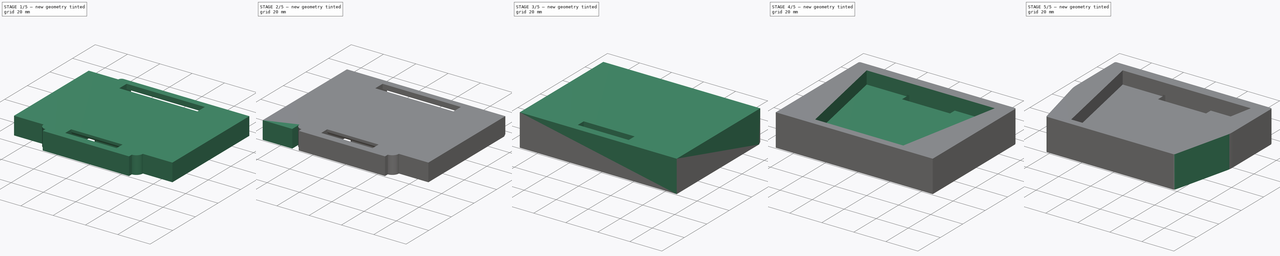
[diagram: build sequence overview — one tinted view per stage of 5, left to right]
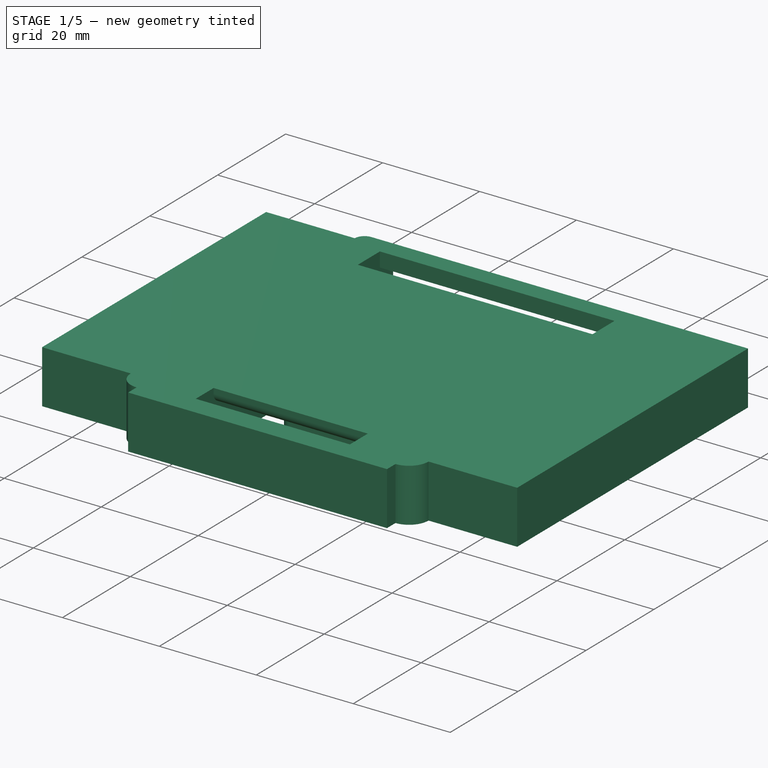
[diagram: stage 1 of 5 — iso view after this stage's code; geometry added in this stage tinted green]
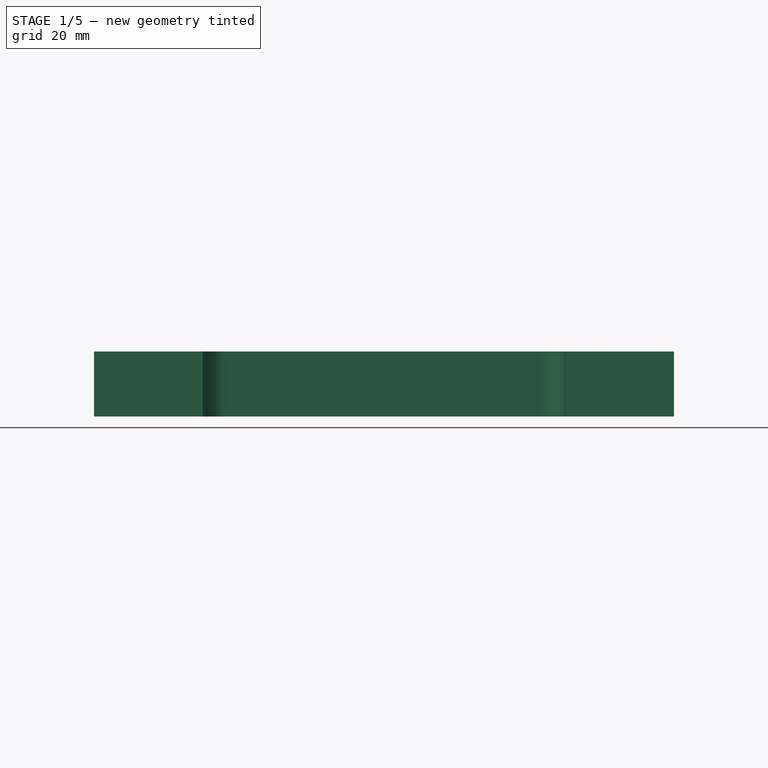
[diagram: stage 1 of 5 — front view after this stage's code; geometry added in this stage tinted green]
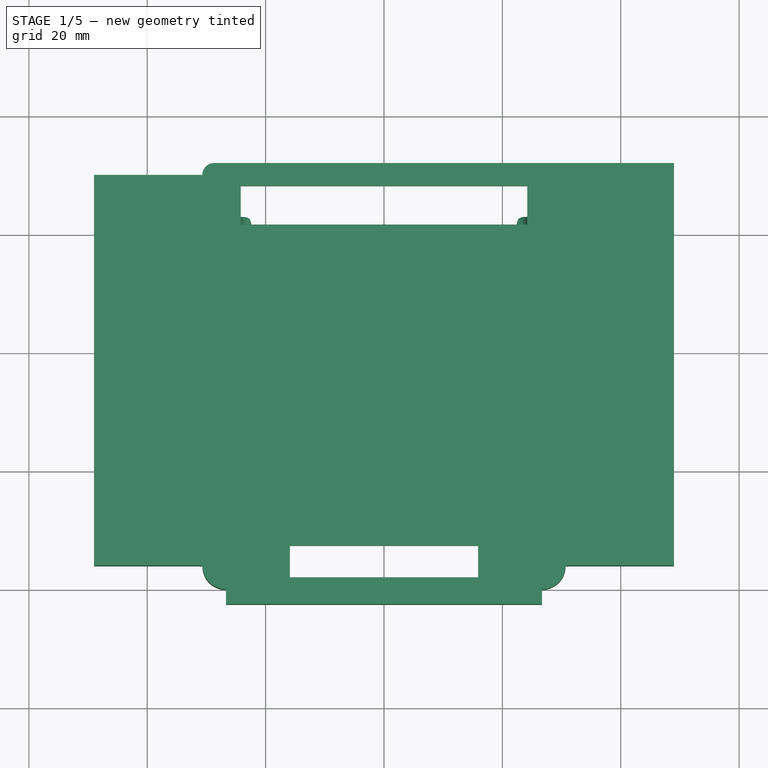
[diagram: stage 1 of 5 — top view after this stage's code; geometry added in this stage tinted green]
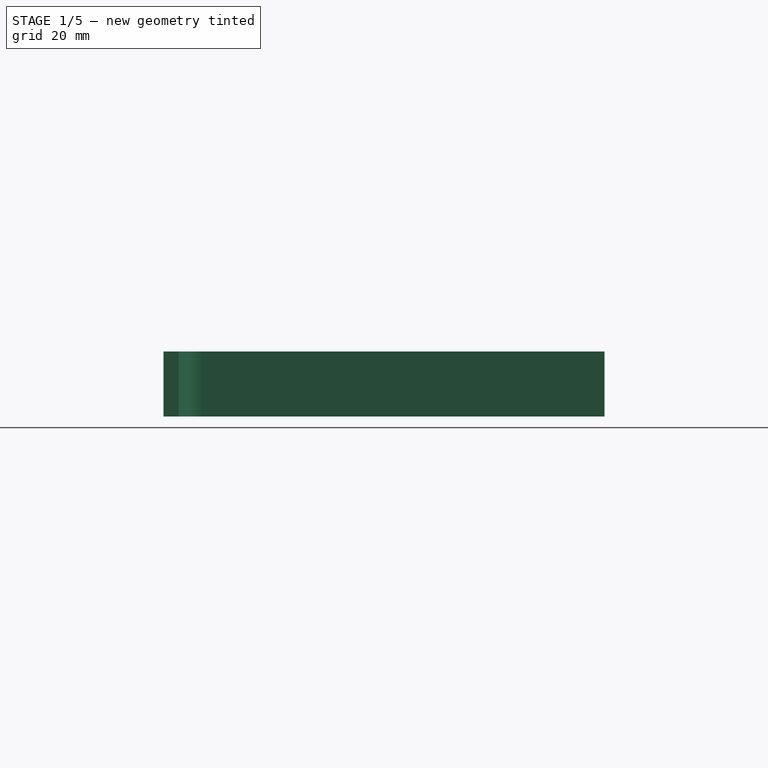
[diagram: stage 1 of 5 — right view after this stage's code; geometry added in this stage tinted green]
FCSTD DOCUMENT  (FreeCAD 0.19R)
Label: Einhell-12V-USBv.0.9
License: All rights reserved
LicenseURL: http://en.wikipedia.org/wiki/All_rights_reserved
objects: PartDesign::Pad×14, PartDesign::Fillet×7, PartDesign::Chamfer×4, PartDesign::Plane×2, Sketcher::SketchObject×2, PartDesign::Pocket×2, Part::Feature×1, App::Part×1, Part::Refine×1, PartDesign::FeatureBase×1, PartDesign::Body×1
note: 62 computed .brp shape members not serialized (recipe doc carries the construction recipe); baked Part::Feature solids carry a one-line shape summary decoded from their .brp

FEATURE [Part::Feature] Part__Feature  label="EinhellAdapterV2"
  shape: bbox 61.4 x 72 x 11 mm, 75 faces (baked)
FEATURE [App::Part] EinhellAdapterV2_v14  label="EinhellAdapterV2 v14"
  Group = -> [Part__Feature]
  Origin = -> Origin
FEATURE [Part::Refine] Part__Feature001  label="EinhellAdapterV003"
  Source = -> Part__Feature
FEATURE [PartDesign::FeatureBase] BaseFeature
  BaseFeature = -> Part__Feature001
FEATURE [PartDesign::Pad] Pad
  BaseFeature = -> BaseFeature
  Direction = (1,1,1)
  Length = 18.3
  Length2 = 100
  Profile = -> BaseFeature [Face31]
  Refine = true
  Type = 0
FEATURE [PartDesign::Pad] Pad001
  BaseFeature = -> Pad
  Direction = (1,1,1)
  Length = 18.3
  Length2 = 100
  Profile = -> Pad [Face2]
  Refine = true
  Type = 0
FEATURE [PartDesign::Pad] Pad002
  BaseFeature = -> Pad001
  Direction = (1,1,1)
  Length = 2.5
  Length2 = 100
  Profile = -> Pad001 [Face12]
  Refine = true
  Type = 0
FEATURE [PartDesign::Pad] Pad003
  BaseFeature = -> Pad002
  Direction = (1,1,1)
  Length = 2
  Length2 = 100
  Profile = -> Pad002 [Face9]
  Refine = true
  Type = 0
FEATURE [PartDesign::Pad] Pad004
  BaseFeature = -> Pad003
  Direction = (1,1,1)
  Length = 2
  Length2 = 100
  Profile = -> Pad003 [Face46]
  Refine = true
  Type = 0
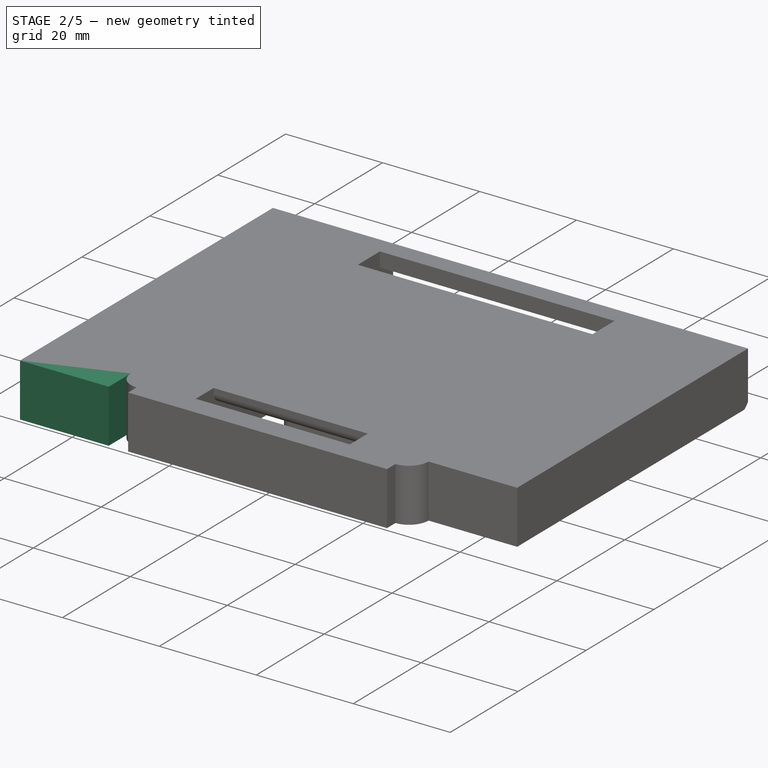
[diagram: stage 2 of 5 — iso view after this stage's code; geometry added in this stage tinted green]
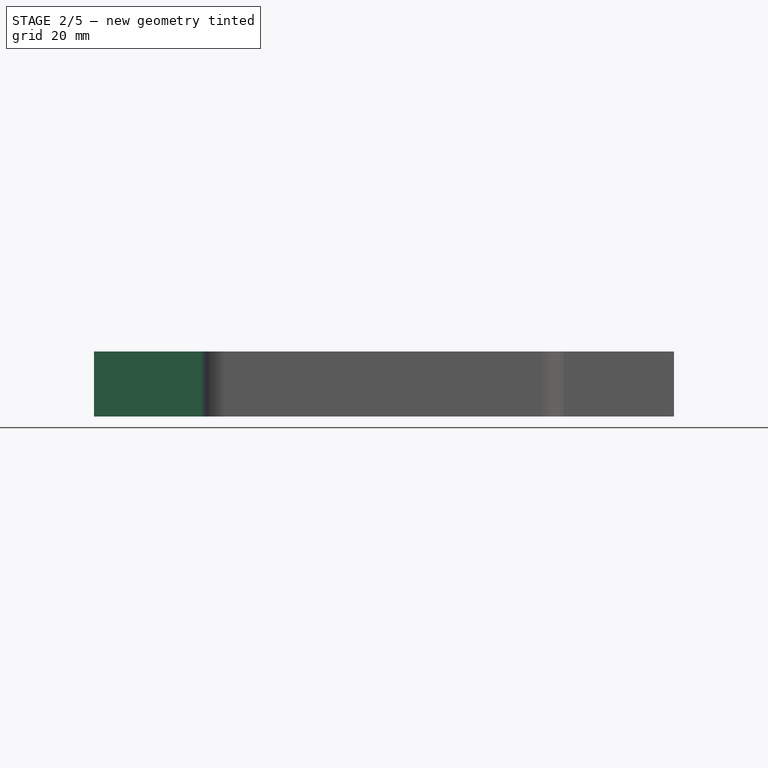
[diagram: stage 2 of 5 — front view after this stage's code; geometry added in this stage tinted green]
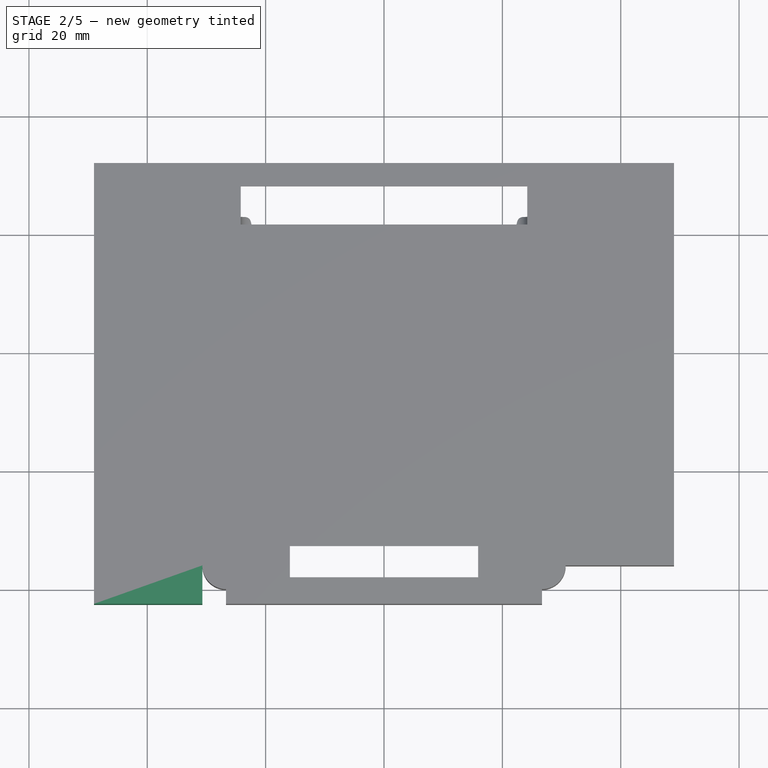
[diagram: stage 2 of 5 — top view after this stage's code; geometry added in this stage tinted green]
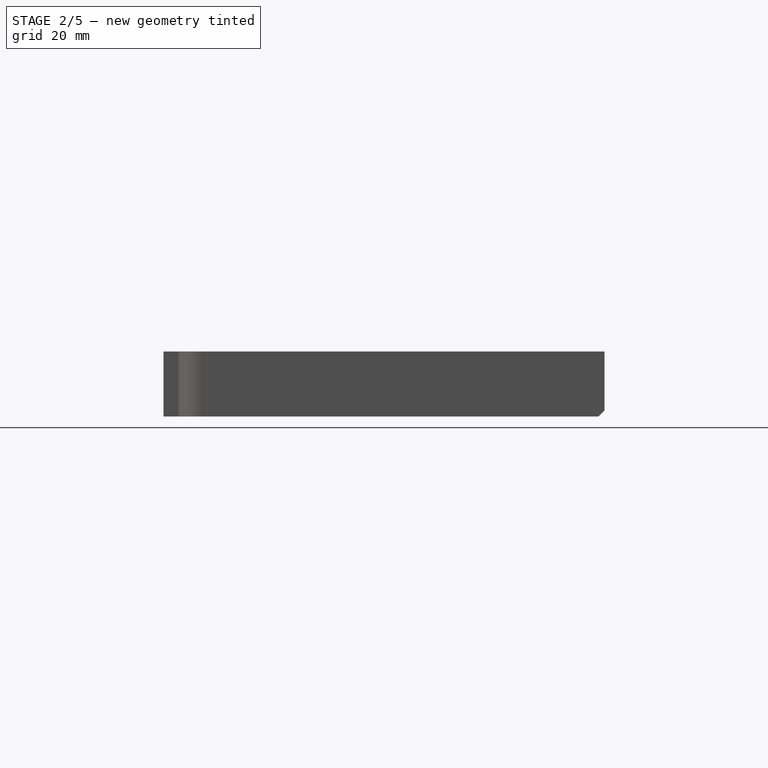
[diagram: stage 2 of 5 — right view after this stage's code; geometry added in this stage tinted green]
FEATURE [PartDesign::Chamfer] Chamfer
  Angle = 45
  Base = -> Pad004 [Edge183]
  BaseFeature = -> Pad004
  ChamferType = 0
  FlipDirection = false
  Refine = true
  Size = 1
  Size2 = 1
  SupportTransform = false
FEATURE [PartDesign::Pad] Pad005
  BaseFeature = -> Chamfer
  Direction = (1,1,1)
  Length = 2
  Length2 = 100
  Profile = -> Chamfer [Face22]
  Refine = true
  Type = 0
FEATURE [PartDesign::Pad] Pad006
  BaseFeature = -> Pad005
  Direction = (1,1,1)
  Length = 2
  Length2 = 100
  Profile = -> Pad005 [Face45]
  Refine = true
  Type = 0
FEATURE [PartDesign::Chamfer] Chamfer001
  Angle = 45
  Base = -> Pad006 [Edge176]
  BaseFeature = -> Pad006
  ChamferType = 0
  FlipDirection = false
  Refine = true
  Size = 1
  Size2 = 1
  SupportTransform = false
FEATURE [PartDesign::Pad] Pad007
  BaseFeature = -> Chamfer001
  Direction = (1,1,1)
  Length = 6.5
  Length2 = 100
  Profile = -> Chamfer001 [Face4]
  Refine = true
  Type = 0
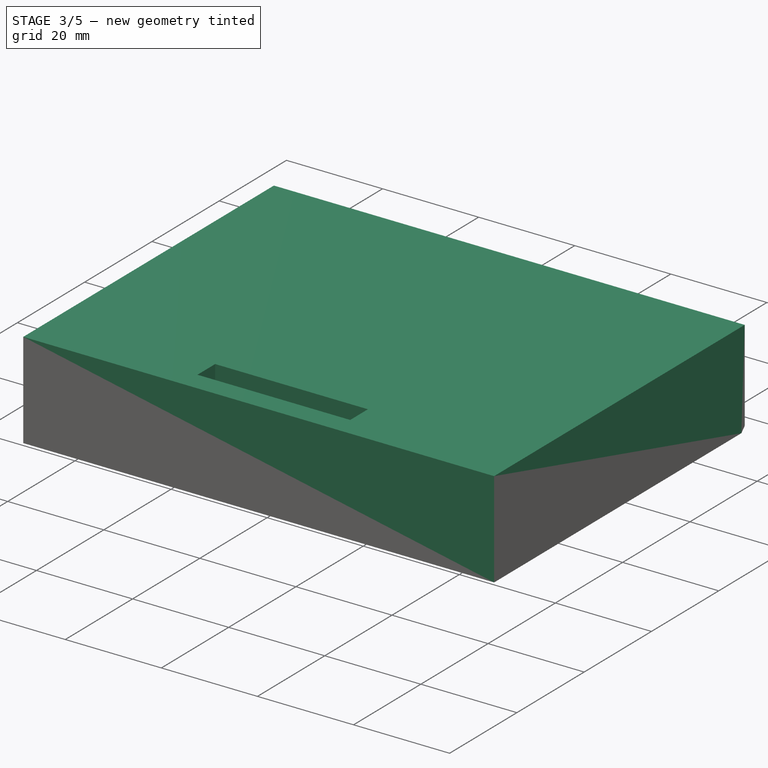
[diagram: stage 3 of 5 — iso view after this stage's code; geometry added in this stage tinted green]
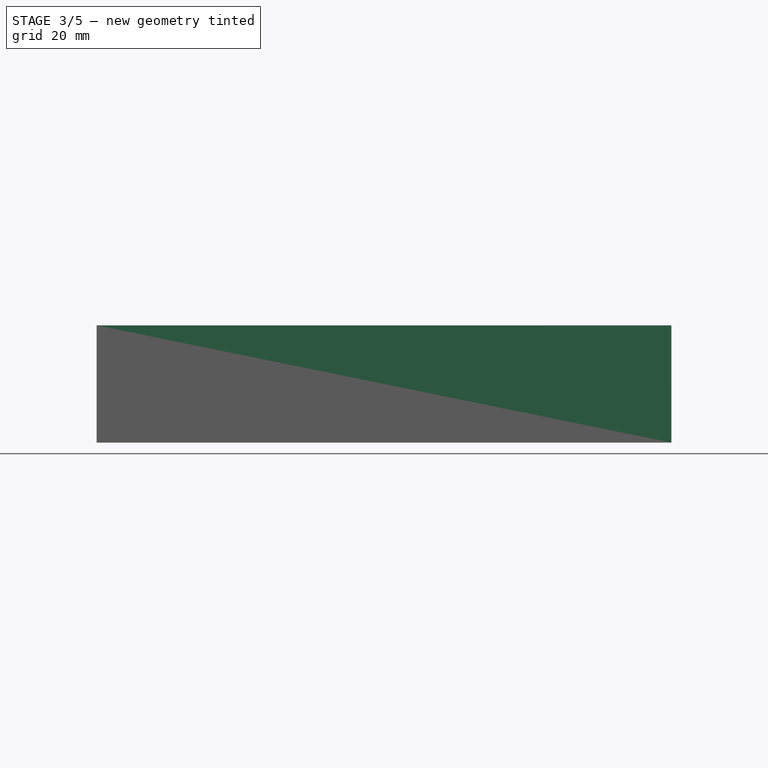
[diagram: stage 3 of 5 — front view after this stage's code; geometry added in this stage tinted green]
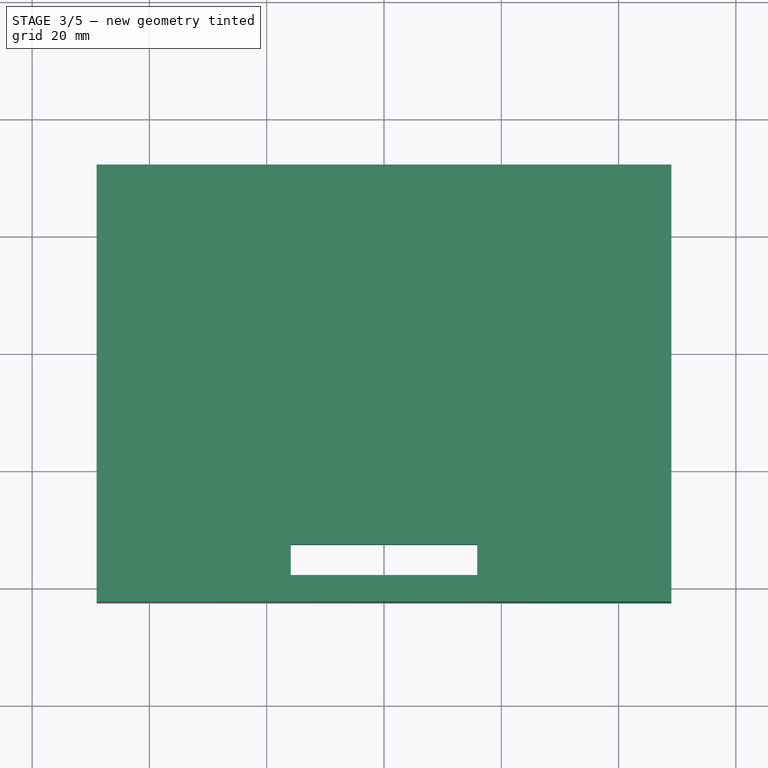
[diagram: stage 3 of 5 — top view after this stage's code; geometry added in this stage tinted green]
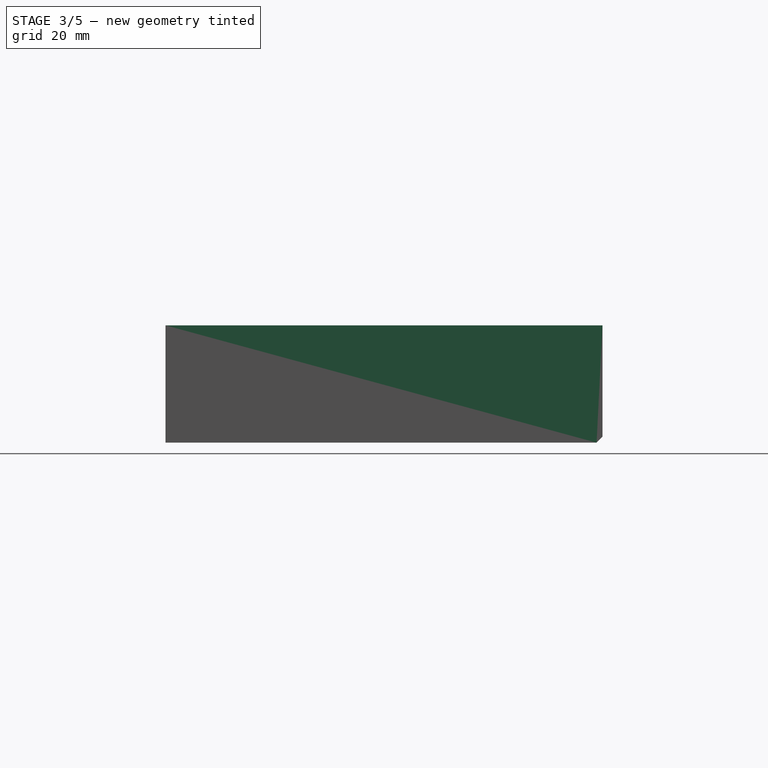
[diagram: stage 3 of 5 — right view after this stage's code; geometry added in this stage tinted green]
FEATURE [PartDesign::Pad] Pad008
  BaseFeature = -> Pad007
  Direction = (1,1,1)
  Length = 4
  Length2 = 100
  Profile = -> Pad007 [Face40]
  Refine = true
  Type = 0
FEATURE [PartDesign::Pad] Pad009
  BaseFeature = -> Pad008
  Direction = (1,1,1)
  Length = 6.5
  Length2 = 100
  Profile = -> Pad008 [Face10]
  Refine = true
  Type = 0
FEATURE [PartDesign::Pad] Pad010
  BaseFeature = -> Pad009
  Direction = (1,1,1)
  Length = 4
  Length2 = 100
  Profile = -> Pad009 [Face39]
  Refine = true
  Type = 0
FEATURE [PartDesign::Pad] Pad011
  BaseFeature = -> Pad010
  Direction = (1,1,1)
  Length = 1
  Length2 = 100
  Profile = -> Pad010 [Face51]
  Refine = true
  Type = 0
FEATURE [PartDesign::Pad] Pad012
  BaseFeature = -> Pad011
  Direction = (1,1,1)
  Length = 7
  Length2 = 100
  Profile = -> Pad011 [Face71]
  Refine = true
  Type = 0
FEATURE [PartDesign::Pad] Pad013
  BaseFeature = -> Pad012
  Direction = (1,1,1)
  Length = 8
  Length2 = 100
  Profile = -> Pad012 [Face56]
  Refine = true
  Type = 0
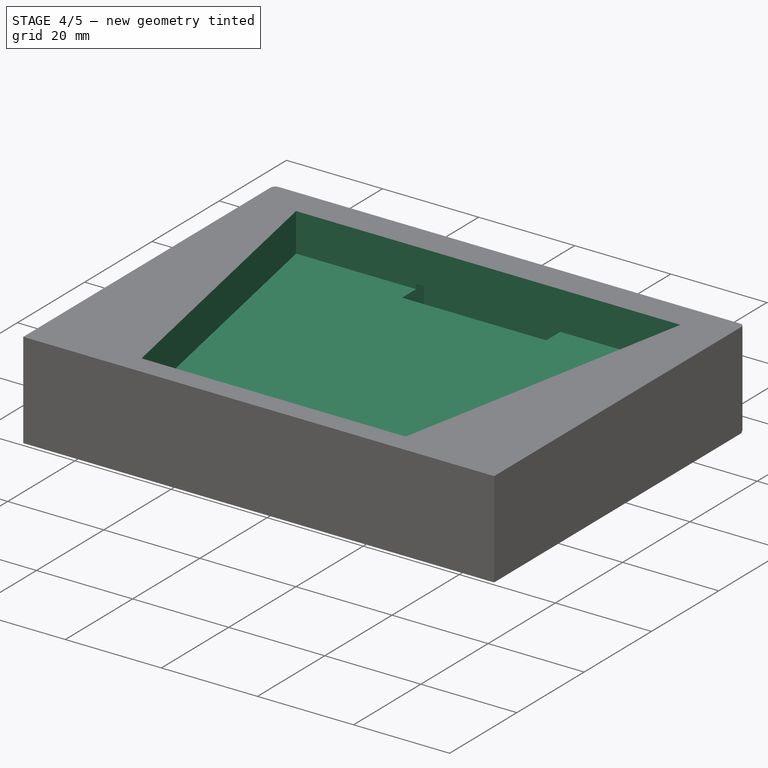
[diagram: stage 4 of 5 — iso view after this stage's code; geometry added in this stage tinted green]
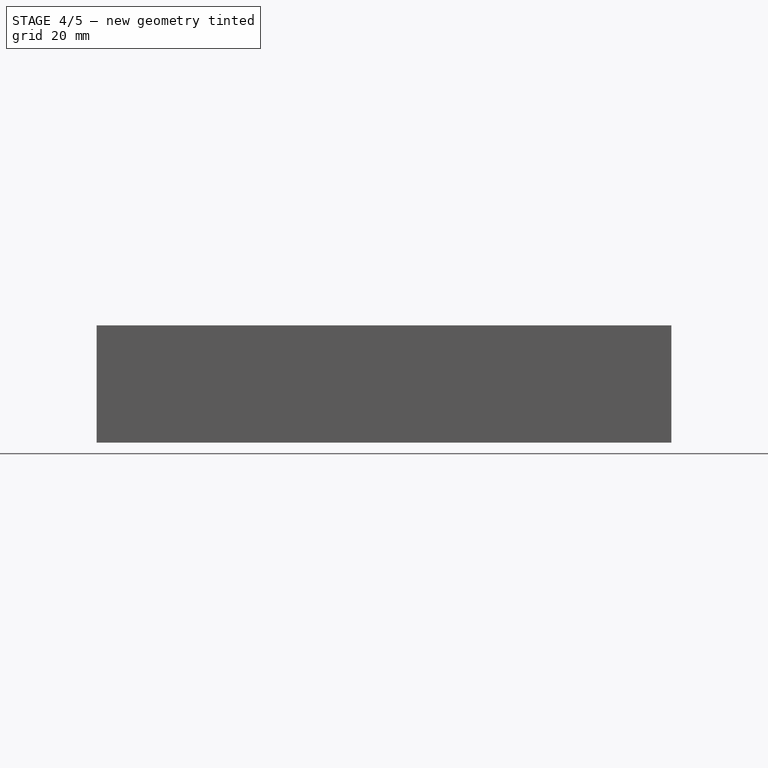
[diagram: stage 4 of 5 — front view after this stage's code; geometry added in this stage tinted green]
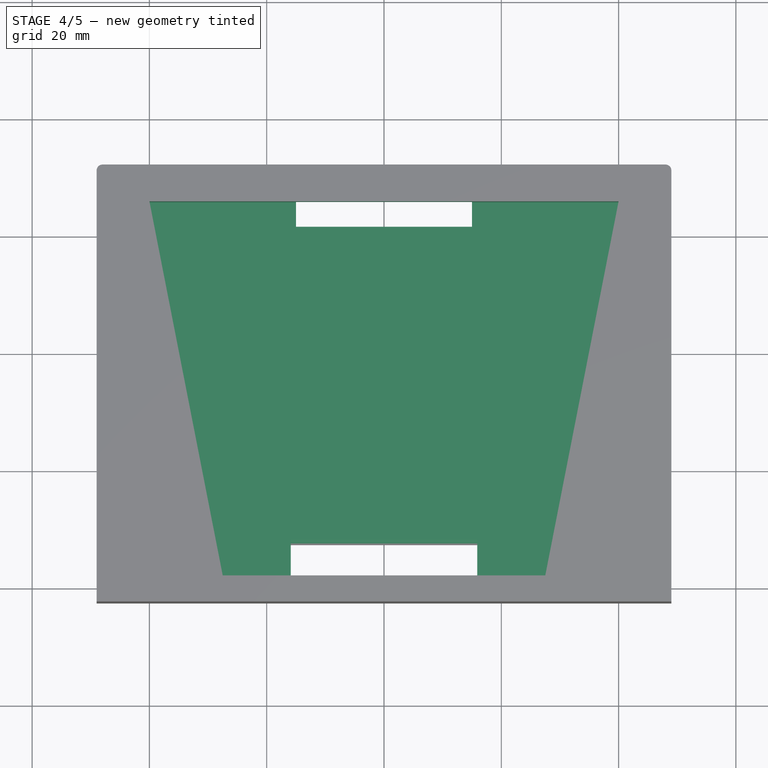
[diagram: stage 4 of 5 — top view after this stage's code; geometry added in this stage tinted green]
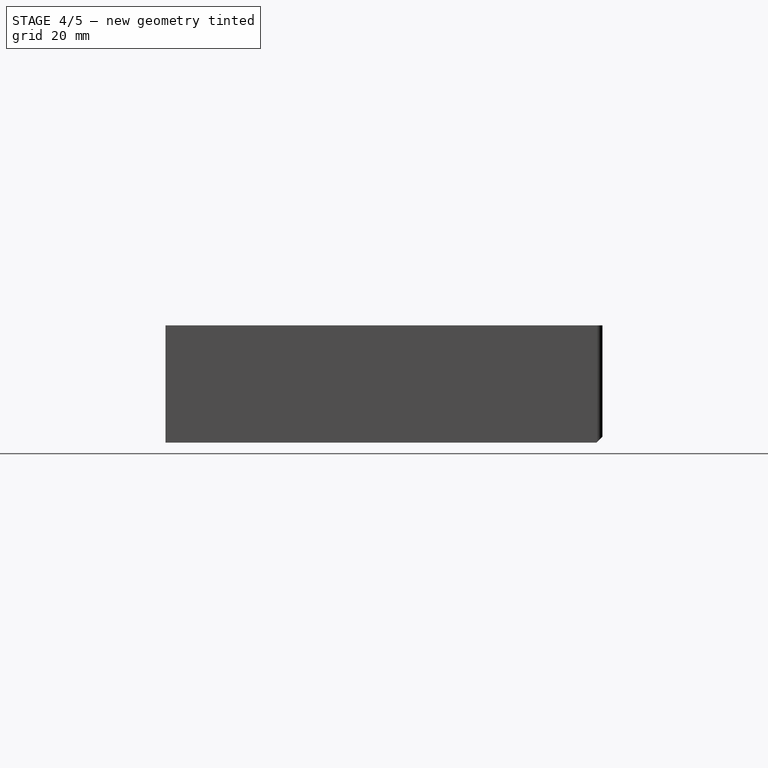
[diagram: stage 4 of 5 — right view after this stage's code; geometry added in this stage tinted green]
FEATURE [PartDesign::Plane] DatumPlane
  Length = 117.5
  MapMode = 5
  Placement = pos=(0,0,8) rot=(1,0,0;3.14159rad)
  ResizeMode = 0
  Support = -> [Pad013]
  Width = 116.5
FEATURE [Sketcher::SketchObject] Sketch
  FullyConstrained = false
  MapMode = 5
  Placement = pos=(0,0,8) rot=(1,0,0;3.14159rad)
  Support = -> [DatumPlane]
  sketch-geometry (4):
    g0: LineSegment StartX=-15 StartY=-61.5413 StartZ=0 EndX=15 EndY=-61.5413 EndZ=0
    g1: LineSegment StartX=15 StartY=-61.5413 StartZ=0 EndX=15 EndY=-68.0413 EndZ=0
    g2: LineSegment StartX=15 StartY=-68.0413 StartZ=0 EndX=-15 EndY=-68.0413 EndZ=0
    g3: LineSegment StartX=-15 StartY=-68.0413 StartZ=0 EndX=-15 EndY=-61.5413 EndZ=0
  constraints (10):
    c: Coincident(g0,g1)
    c: Coincident(g1,g2)
    c: Coincident(g2,g3)
    c: Coincident(g3,g0)
    c: Horizontal(g2)
    c: Vertical(g1)
    c: Vertical(g3)
    c: DistanceY(g2,g0) = 6.5
    c: DistanceX(g0,g0) = 30
    c: Symmetric(g0,g0,g-2)
FEATURE [PartDesign::Pocket] Pocket
  BaseFeature = -> Pad013
  Length = 5
  Length2 = 100
  Profile = -> Sketch
  Refine = true
  Type = 0
FEATURE [PartDesign::Plane] DatumPlane001
  Length = 117.5
  MapMode = 5
  Placement = pos=(0,0,20) rot=(0,0,1;0rad)
  ResizeMode = 0
  Support = -> [Pocket]
  Width = 116.5
FEATURE [Sketcher::SketchObject] Sketch001
  FullyConstrained = false
  MapMode = 5
  Placement = pos=(0,0,20) rot=(0,0,1;0rad)
  Support = -> [DatumPlane001]
  sketch-geometry (4):
    g0: LineSegment StartX=-27.5 StartY=1.94366 StartZ=0 EndX=-40 EndY=65.7304 EndZ=0
    g1: LineSegment StartX=-40 StartY=65.7304 StartZ=0 EndX=40 EndY=65.7304 EndZ=0
    g2: LineSegment StartX=40 StartY=65.7304 StartZ=0 EndX=27.5 EndY=1.94366 EndZ=0
    g3: LineSegment StartX=27.5 StartY=1.94366 StartZ=0 EndX=-27.5 EndY=1.94366 EndZ=0
  constraints (10):
    c: Coincident(g0,g1)
    c: Horizontal(g1)
    c: Coincident(g1,g2)
    c: Coincident(g2,g3)
    c: Coincident(g3,g0)
    c: DistanceX(g1,g1) = 80
    c: DistanceX(g3,g3) = 55
    c: Equal(g0,g2)
    c: Distance(g0) = 65
    c: Symmetric(g0,g2,g-2)
FEATURE [PartDesign::Pocket] Pocket001
  BaseFeature = -> Pocket
  Length = 8
  Length2 = 100
  Profile = -> Sketch001
  Refine = true
  Type = 0
FEATURE [PartDesign::Fillet] Fillet
  Base = -> Pocket001 [Edge183]
  BaseFeature = -> Pocket001
  Radius = 1
  Refine = true
  SupportTransform = false
FEATURE [PartDesign::Fillet] Fillet001
  Base = -> Fillet [Edge160]
  BaseFeature = -> Fillet
  Radius = 1
  Refine = true
  SupportTransform = false
FEATURE [PartDesign::Fillet] Fillet002
  Base = -> Fillet001 [Edge64]
  BaseFeature = -> Fillet001
  Radius = 1
  Refine = true
  SupportTransform = false
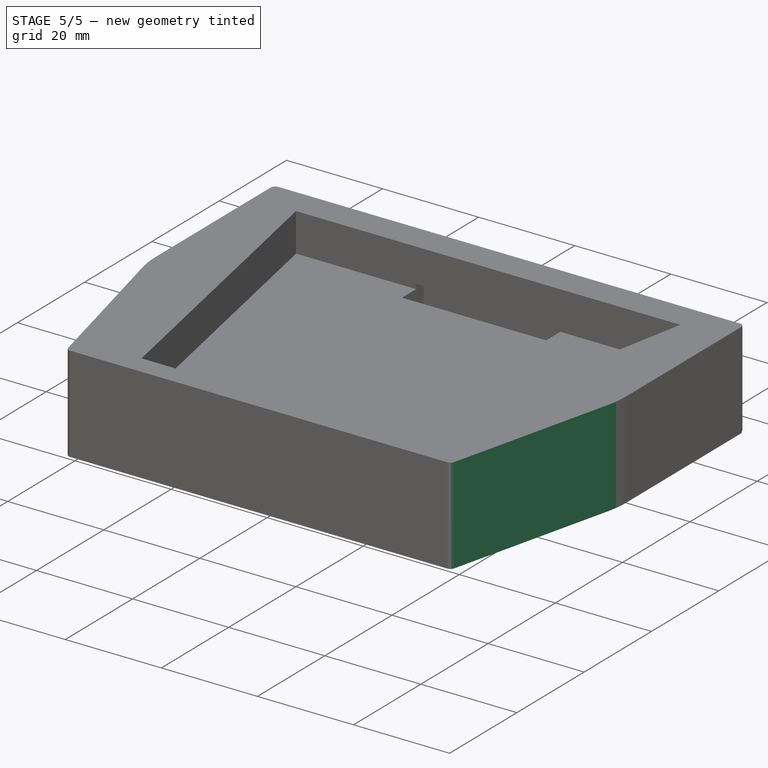
[diagram: stage 5 of 5 — iso view after this stage's code; geometry added in this stage tinted green]
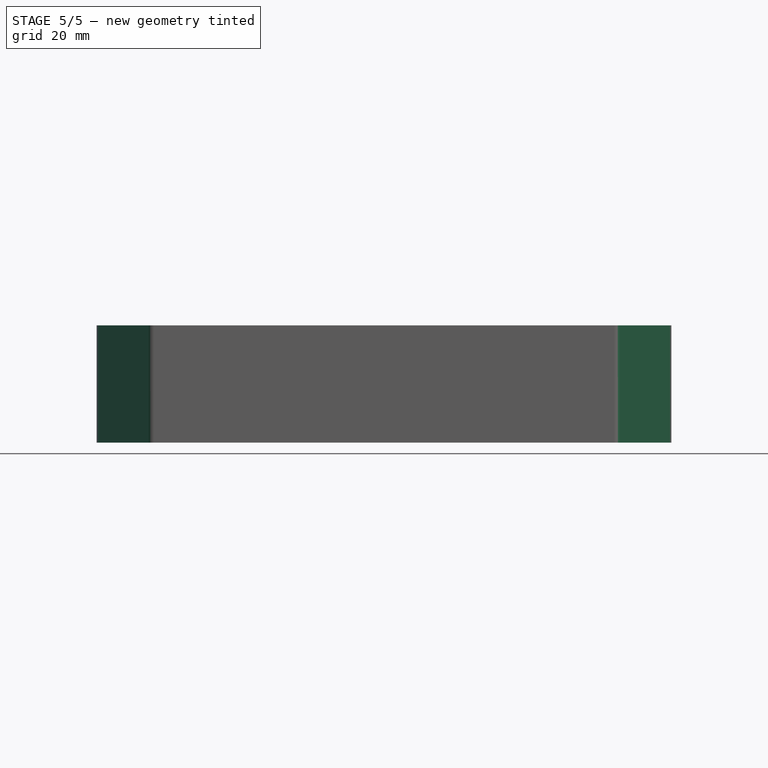
[diagram: stage 5 of 5 — front view after this stage's code; geometry added in this stage tinted green]
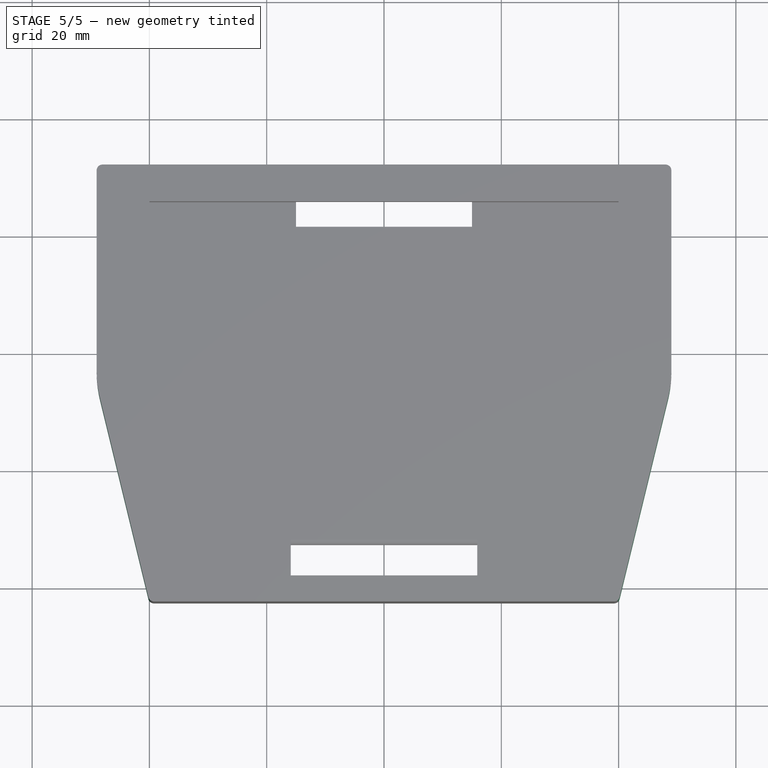
[diagram: stage 5 of 5 — top view after this stage's code; geometry added in this stage tinted green]
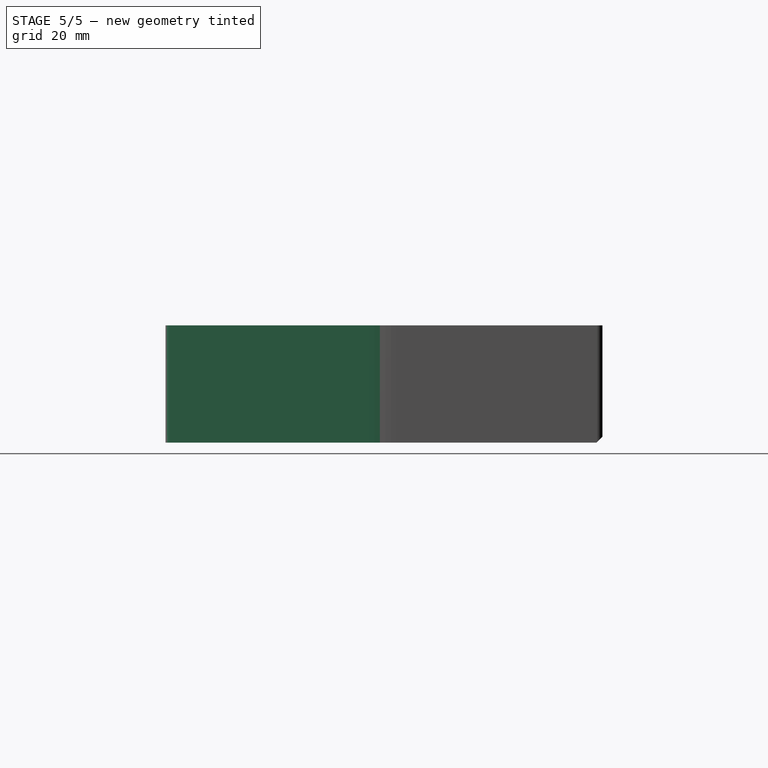
[diagram: stage 5 of 5 — right view after this stage's code; geometry added in this stage tinted green]
FEATURE [PartDesign::Chamfer] Chamfer002
  Angle = 45
  Base = -> Fillet002 [Edge22]
  BaseFeature = -> Fillet002
  ChamferType = 1
  FlipDirection = false
  Refine = true
  Size = 37
  Size2 = 9
  SupportTransform = false
FEATURE [PartDesign::Chamfer] Chamfer003
  Angle = 45
  Base = -> Chamfer002 [Edge20]
  BaseFeature = -> Chamfer002
  ChamferType = 1
  FlipDirection = false
  Refine = true
  Size = 9
  Size2 = 37
  SupportTransform = false
FEATURE [PartDesign::Fillet] Fillet003
  Base = -> Chamfer003 [Edge17]
  BaseFeature = -> Chamfer003
  Radius = 20
  Refine = true
  SupportTransform = false
FEATURE [PartDesign::Fillet] Fillet004
  Base = -> Fillet003 [Edge24]
  BaseFeature = -> Fillet003
  Radius = 20
  Refine = true
  SupportTransform = false
FEATURE [PartDesign::Fillet] Fillet005
  Base = -> Fillet004 [Edge17]
  BaseFeature = -> Fillet004
  Radius = 1
  Refine = true
  SupportTransform = false
FEATURE [PartDesign::Fillet] Fillet006
  Base = -> Fillet005 [Edge24]
  BaseFeature = -> Fillet005
  Radius = 1
  Refine = true
  SupportTransform = false
FEATURE [PartDesign::Body] Body
  BaseFeature = -> Part__Feature001
  Group = -> [BaseFeature,Pad,Pad001,Pad002,Pad003,Pad004,Chamfer,Pad005,Pad006,Chamfer001,Pad007,Pad008,Pad009,Pad010,Pad011,Pad012,Pad013,DatumPlane,Sketch,Pocket,DatumPlane001,Sketch001,Pocket001,Fillet,Fillet001,Fillet002,Chamfer002,Chamfer003,Fillet003,Fillet004,Fillet005,Fillet006]
  Origin = -> Origin001
  Placement = pos=(0,-38,0) rot=(0,0,1;0rad)
  Tip = -> Fillet006
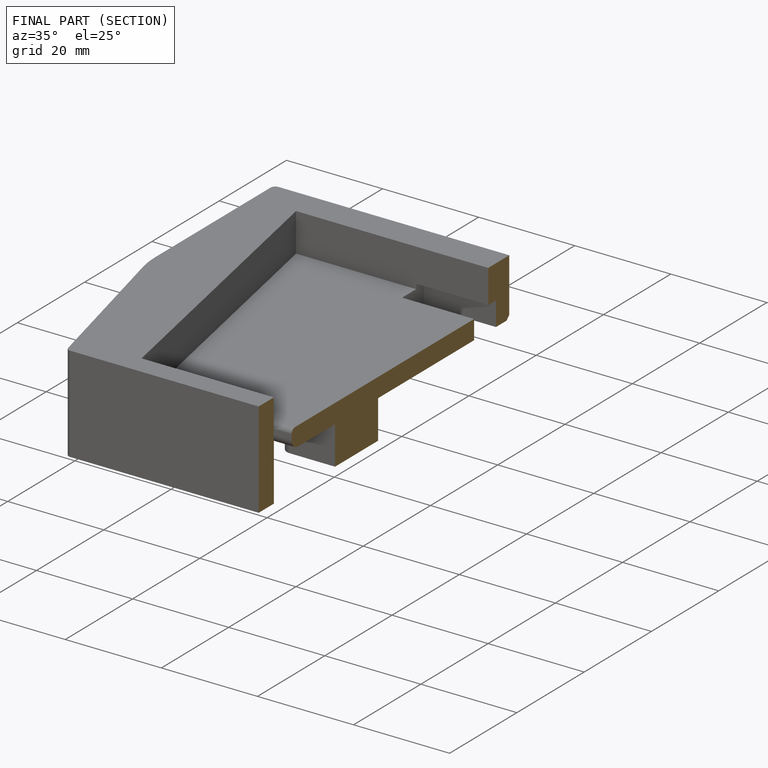
[diagram: finished part — half-section view (interior)]
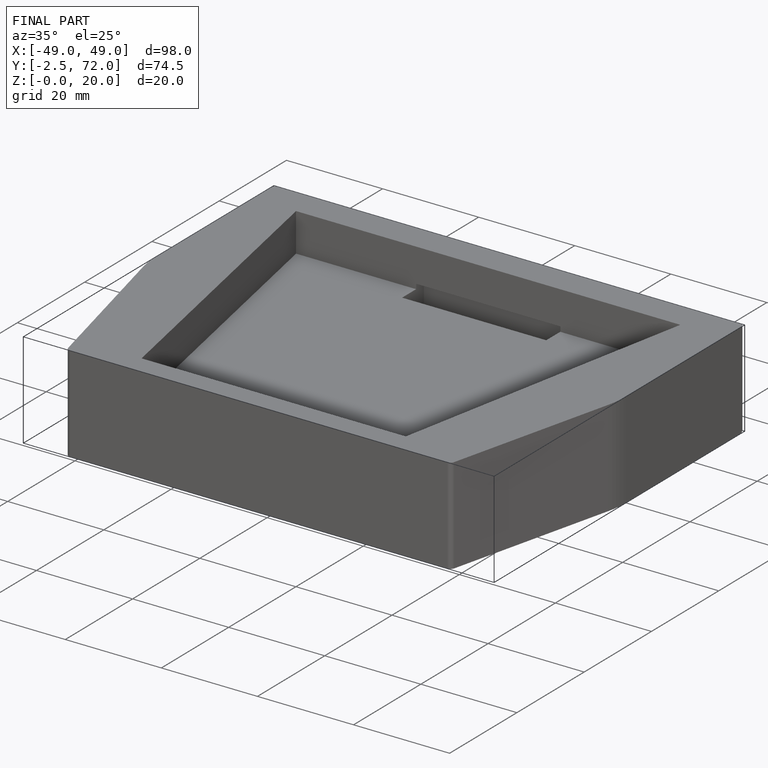
[diagram: finished part — iso view with bounding-box wireframe]
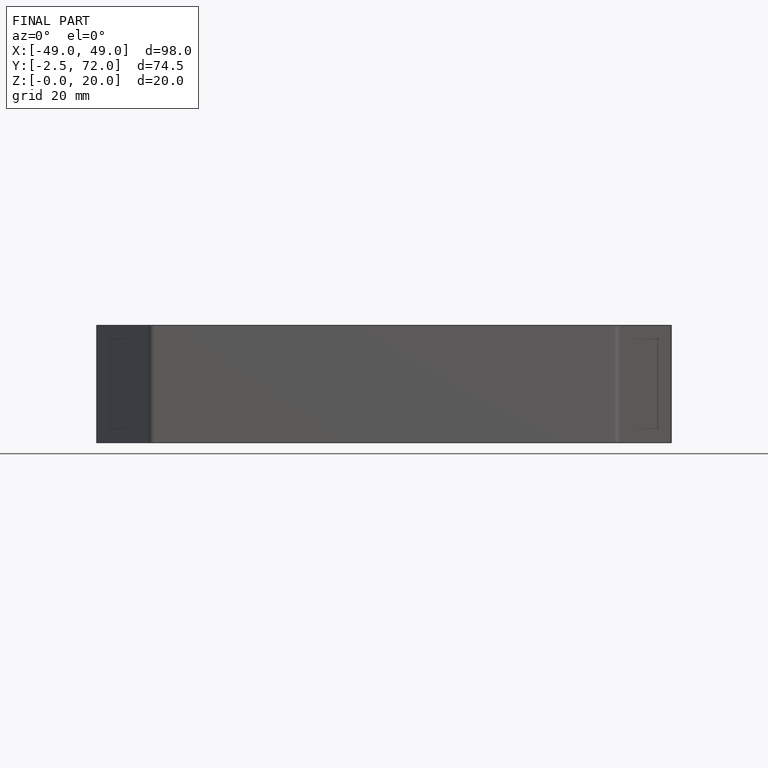
[diagram: finished part — front view with bounding-box wireframe]
